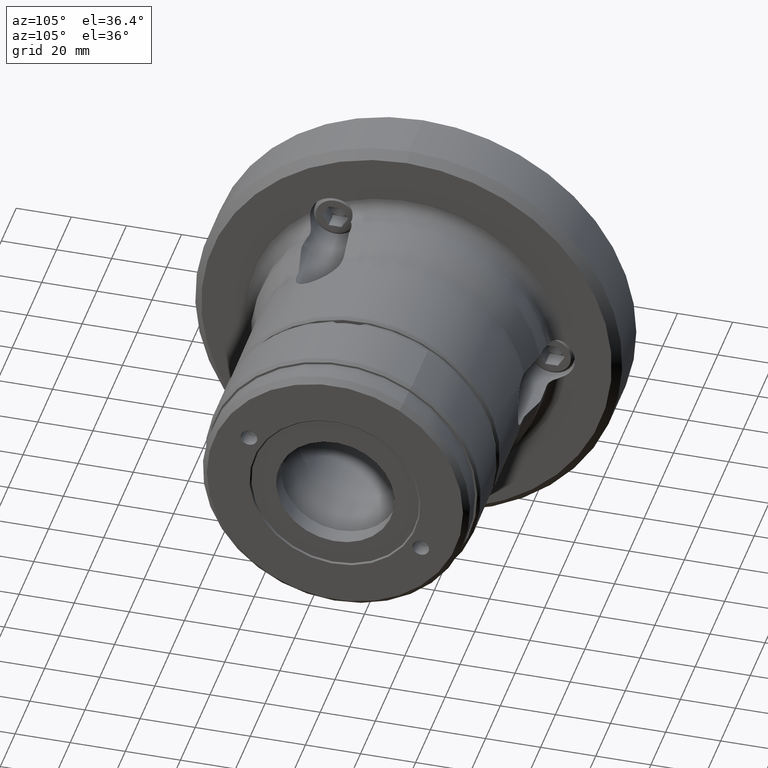
[diagram: clean part render]
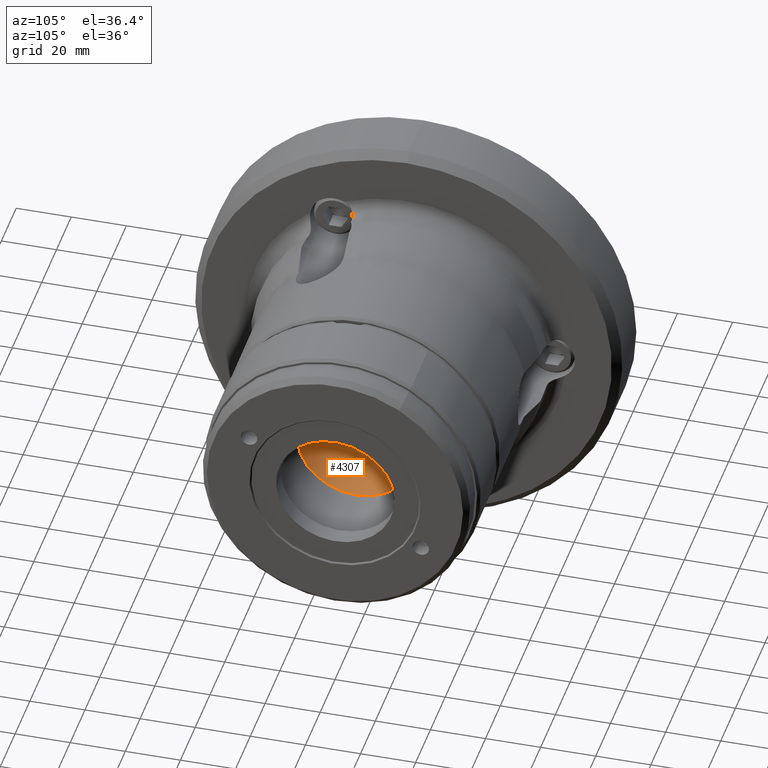
[diagram: same view with one face highlighted and labeled with its STEP entity id]
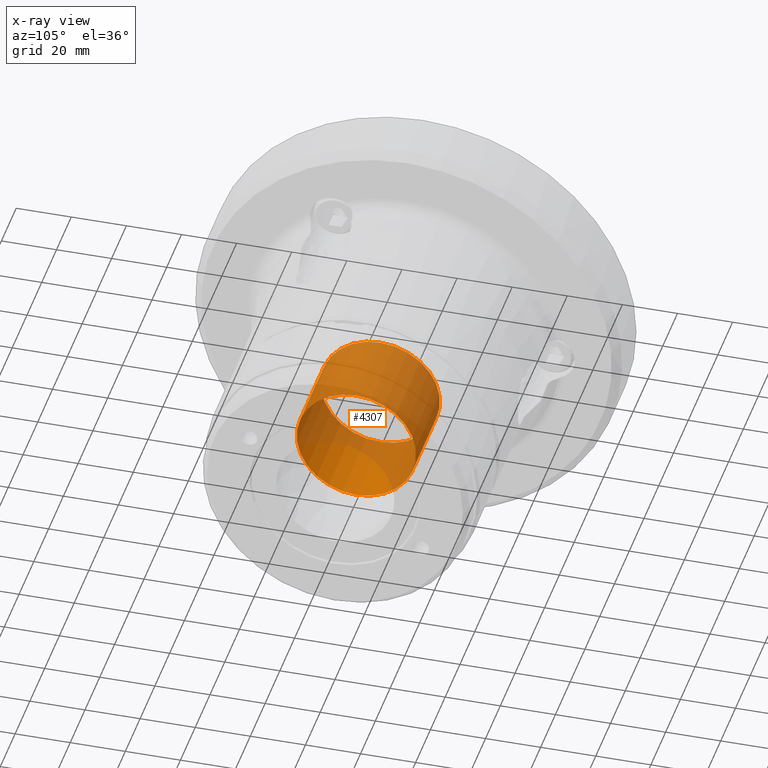
[diagram: x-ray of the same camera — body ghosted, the highlighted face saturated]
A machine part, auxiliary view. The second image highlights one B-rep face of the part: STEP entity #4307.
The next image is the same camera in x-ray: the body ghosted, the highlighted face saturated — about 77% of this face is hidden behind the body in this view.
In plain terms, the highlighted cylindrical surface (bore or boss wall) has radius 21.65 mm, axis along (-1, -0, -0).
Its self-contained STEP definition (entity closure, byte-faithful):
#103 = FACE_OUTER_BOUND ( 'NONE', #2177, .T. ) ;
#237 = DIRECTION ( 'NONE',  ( 0.0000000000000000000, 0.0000000000000000000, 1.000000000000000000 ) ) ;
#261 = DIRECTION ( 'NONE',  ( -1.000000000000000000, -0.0000000000000000000, -0.0000000000000000000 ) ) ;
#265 = CARTESIAN_POINT ( 'NONE',  ( 38.42583302491976838, 0.0000000000000000000, 0.0000000000000000000 ) ) ;
#285 = ORIENTED_EDGE ( 'NONE', *, *, #1421, .F. ) ;
#1292 = CARTESIAN_POINT ( 'NONE',  ( 38.42583302491976838, 0.0000000000000000000, 21.64999999999999858 ) ) ;
#1421 = EDGE_CURVE ( 'NONE', #3788, #3788, #4997, .T. ) ;
#1532 = DIRECTION ( 'NONE',  ( -1.000000000000000000, -0.0000000000000000000, -0.0000000000000000000 ) ) ;
#2077 = FACE_OUTER_BOUND ( 'NONE', #3090, .T. ) ;
#2177 = EDGE_LOOP ( 'NONE', ( #285 ) ) ;
#2236 = AXIS2_PLACEMENT_3D ( 'NONE', #6060, #6070, #4973 ) ;
#2502 = CIRCLE ( 'NONE', #5213, 21.64999999999999858 ) ;
#3084 = EDGE_CURVE ( 'NONE', #5696, #5696, #2502, .T. ) ;
#3090 = EDGE_LOOP ( 'NONE', ( #5780 ) ) ;
#3370 = AXIS2_PLACEMENT_3D ( 'NONE', #5877, #1532, #3632 ) ;
#3632 = DIRECTION ( 'NONE',  ( 0.0000000000000000000, 0.0000000000000000000, 1.000000000000000000 ) ) ;
#3788 = VERTEX_POINT ( 'NONE', #5612 ) ;
#4096 = CYLINDRICAL_SURFACE ( 'NONE', #3370, 21.64999999999999858 ) ;
#4307 = ADVANCED_FACE ( 'NONE', ( #103, #2077 ), #4096, .F. ) ;
#4973 = DIRECTION ( 'NONE',  ( 0.0000000000000000000, 0.0000000000000000000, 1.000000000000000000 ) ) ;
#4997 = CIRCLE ( 'NONE', #2236, 21.64999999999999858 ) ;
#5213 = AXIS2_PLACEMENT_3D ( 'NONE', #265, #261, #237 ) ;
#5612 = CARTESIAN_POINT ( 'NONE',  ( 70.77754263498488285, 0.0000000000000000000, 21.64999999999999858 ) ) ;
#5696 = VERTEX_POINT ( 'NONE', #1292 ) ;
#5780 = ORIENTED_EDGE ( 'NONE', *, *, #3084, .T. ) ;
#5877 = CARTESIAN_POINT ( 'NONE',  ( 0.0000000000000000000, 0.0000000000000000000, 0.0000000000000000000 ) ) ;
#6060 = CARTESIAN_POINT ( 'NONE',  ( 70.77754263498488285, 0.0000000000000000000, 0.0000000000000000000 ) ) ;
#6070 = DIRECTION ( 'NONE',  ( -1.000000000000000000, -0.0000000000000000000, -0.0000000000000000000 ) ) ;